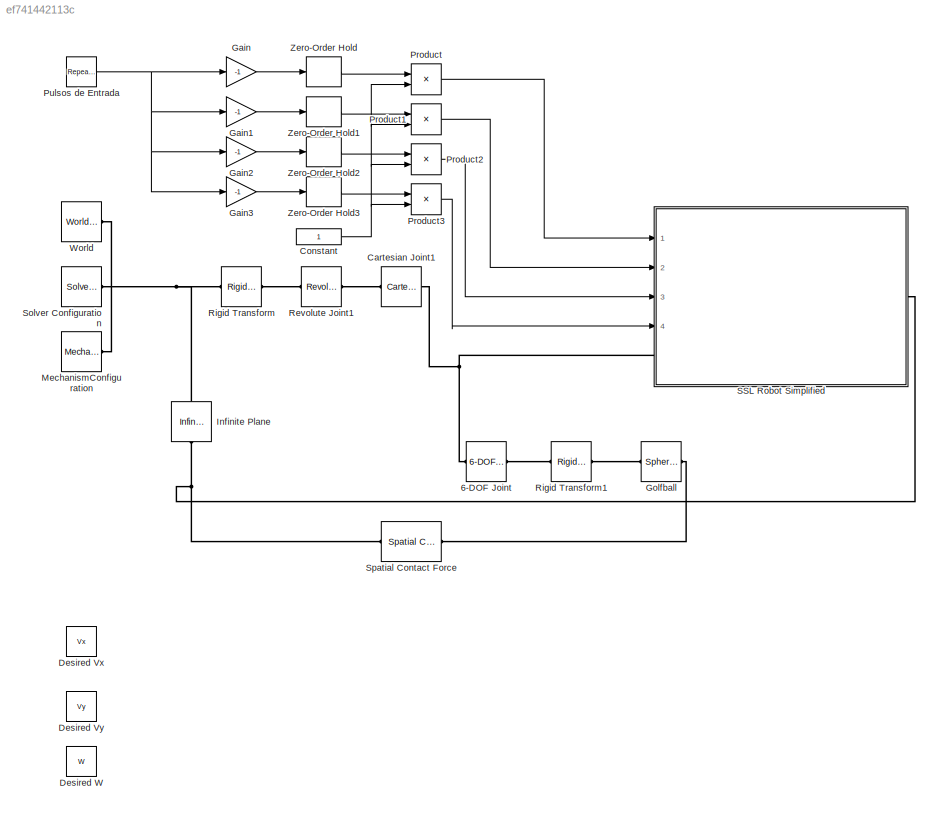
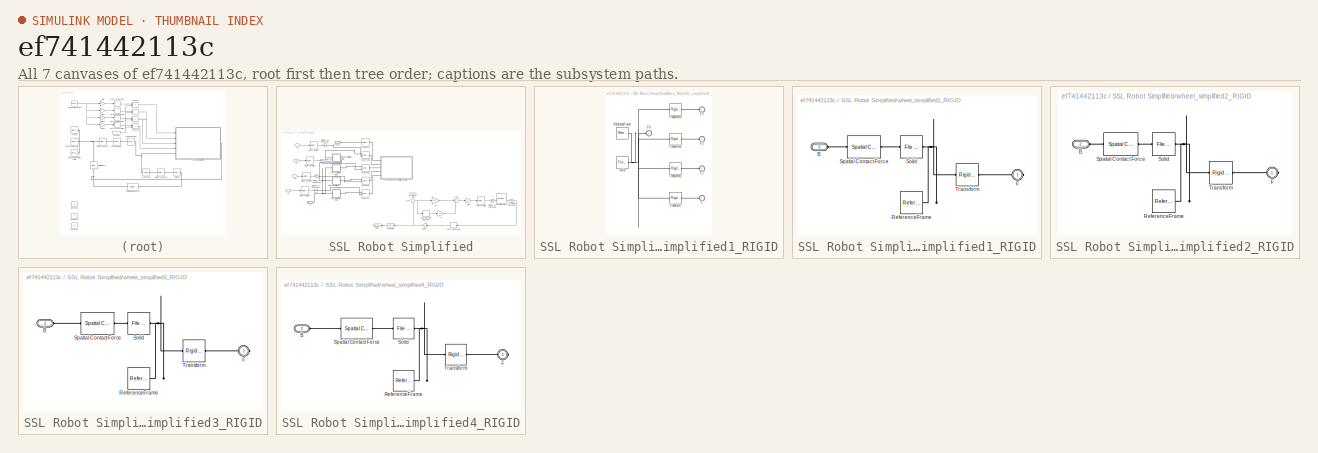
[diagram: thumbnail index - all 7 canvases of the model, root first then tree order]
MODEL slx_ef741442113c
KIND model
CONFIG AbsTol = auto
CONFIG EnableMultiTasking = off
CONFIG FixedStep = auto
CONFIG MaxStep = auto
CONFIG MinStep = auto
CONFIG RelTol = 1e-3
CONFIG SampleTimeConstraint = Unconstrained
CONFIG SolverName = VariableStepAuto
CONFIG StartTime = 0.0
CONFIG StopTime = 10.0
WORKSPACE source: external: MATLAB File  (data not in archive)
BLOCK [Reference] 6-DOF Joint  REF=sm_lib/Joints/6-DOF Joint
  Ports = [0, 0, 0, 0, 0, 1, 1]
  SourceBlock = sm_lib/Joints/6-DOF Joint
  SourceProductBaseCode = MS
  SourceType = 6-DOF Joint
BLOCK [Reference] Cartesian Joint1  REF=sm_lib/Joints/Cartesian
Joint
  Ports = [0, 0, 0, 0, 0, 1, 1]
  SourceBlock = sm_lib/Joints/Cartesian\nJoint
  SourceProductBaseCode = MS
  SourceType = Cartesian\nJoint
BLOCK [Constant] Constant
BLOCK [Constant] Desired Vx
  Commented = on
  Value = Vx
BLOCK [Constant] Desired Vy
  Commented = on
  Value = Vy
BLOCK [Constant] Desired W
  Commented = on
  Value = W
BLOCK [Gain] Gain
  Gain = -1
BLOCK [Gain] Gain1
  Gain = -1
BLOCK [Gain] Gain2
  Gain = -1
BLOCK [Gain] Gain3
  Gain = -1
BLOCK [Reference] Golfball  REF=sm_lib/Body Elements/Spherical Solid
  NameLocation = top
  Ports = [0, 0, 0, 0, 0, 1, 1]
  SourceBlock = sm_lib/Body Elements/Spherical Solid
  SourceProductBaseCode = MS
  SourceType = Spherical Solid
BLOCK [Reference] Infinite Plane  REF=sm_lib/Curves and Surfaces/Infinite Plane
  NameLocation = left
  Ports = [0, 0, 0, 0, 0, 1, 1]
  SourceBlock = sm_lib/Curves and Surfaces/Infinite Plane
  SourceProductBaseCode = MS
  SourceType = Infinite Plane
BLOCK [Reference] MechanismConfiguration  REF=sm_lib/Utilities/Mechanism
Configuration
  Ports = [0, 0, 0, 0, 0, 0, 1]
  SourceBlock = sm_lib/Utilities/Mechanism\nConfiguration
  SourceProductBaseCode = MS
  SourceType = Mechanism\nConfiguration
BLOCK [Product] Product
  Ports = [2, 1]
BLOCK [Product] Product1
  Ports = [2, 1]
BLOCK [Product] Product2
  Ports = [2, 1]
BLOCK [Product] Product3
  Ports = [2, 1]
BLOCK [Reference] Pulsos de Entrada  REF=simulink/Sources/Repeating
Sequence
  Ports = [0, 1]
  SourceBlock = simulink/Sources/Repeating\nSequence
  SourceProductBaseCode = SL
  SourceType = Repeating table
BLOCK [Reference] Revolute Joint1  REF=sm_lib/Joints/Revolute Joint
  Ports = [0, 0, 0, 0, 0, 1, 1]
  SourceBlock = sm_lib/Joints/Revolute Joint
  SourceProductBaseCode = MS
  SourceType = Revolute Joint
BLOCK [Reference] Rigid Transform  REF=sm_lib/Frames and
Transforms/Rigid
Transform
  Ports = [0, 0, 0, 0, 0, 1, 1]
  SourceBlock = sm_lib/Frames and\nTransforms/Rigid\nTransform
  SourceProductBaseCode = MS
  SourceType = Rigid\nTransform
BLOCK [Reference] Rigid Transform1  REF=sm_lib/Frames and
Transforms/Rigid
Transform
  Ports = [0, 0, 0, 0, 0, 1, 1]
  SourceBlock = sm_lib/Frames and\nTransforms/Rigid\nTransform
  SourceProductBaseCode = MS
  SourceType = Rigid\nTransform
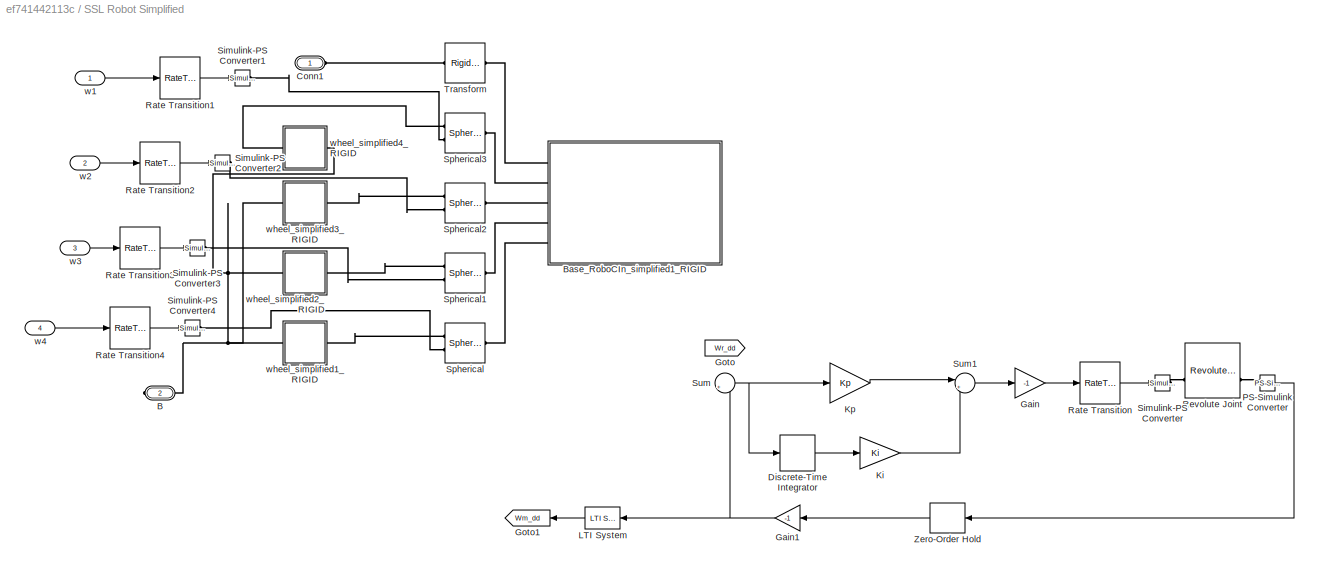
BLOCK [SubSystem] SSL Robot Simplified
  Ports = [4, 0, 0, 0, 0, 1, 1]
  RequestExecContextInheritance = off
BLOCK [PMIOPort] SSL Robot Simplified/B
  Port = 2
  Side = Right
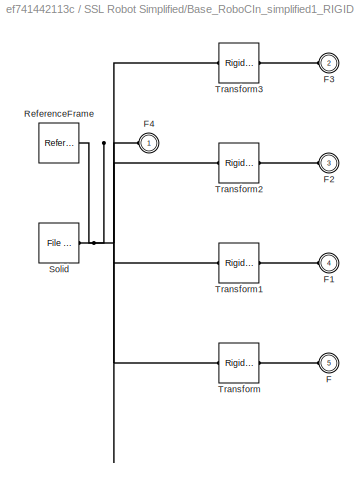
BLOCK [SubSystem] SSL Robot Simplified/Base_RoboCIn_simplified1_RIGID
  Ports = [0, 0, 0, 0, 0, 5]
  RequestExecContextInheritance = off
BLOCK [PMIOPort] SSL Robot Simplified/Base_RoboCIn_simplified1_RIGID/F
  Port = 5
  Side = Left
BLOCK [PMIOPort] SSL Robot Simplified/Base_RoboCIn_simplified1_RIGID/F1
  Port = 4
  Side = Left
BLOCK [PMIOPort] SSL Robot Simplified/Base_RoboCIn_simplified1_RIGID/F2
  Port = 3
  Side = Left
BLOCK [PMIOPort] SSL Robot Simplified/Base_RoboCIn_simplified1_RIGID/F3
  Port = 2
  Side = Left
BLOCK [PMIOPort] SSL Robot Simplified/Base_RoboCIn_simplified1_RIGID/F4
  Side = Left
BLOCK [Reference] SSL Robot Simplified/Base_RoboCIn_simplified1_RIGID/ReferenceFrame  REF=sm_lib/Frames and
Transforms/Reference
Frame
  Ports = [0, 0, 0, 0, 0, 0, 1]
  SourceBlock = sm_lib/Frames and\nTransforms/Reference\nFrame
  SourceProductBaseCode = MS
  SourceType = Reference\nFrame
BLOCK [Reference] SSL Robot Simplified/Base_RoboCIn_simplified1_RIGID/Solid  REF=sm_lib/Body Elements/File Solid
  Ports = [0, 0, 0, 0, 0, 0, 1]
  SourceBlock = sm_lib/Body Elements/File Solid
  SourceProductBaseCode = MS
  SourceType = File Solid
BLOCK [Reference] SSL Robot Simplified/Base_RoboCIn_simplified1_RIGID/Transform  REF=sm_lib/Frames and
Transforms/Rigid
Transform
  Ports = [0, 0, 0, 0, 0, 1, 1]
  SourceBlock = sm_lib/Frames and\nTransforms/Rigid\nTransform
  SourceProductBaseCode = MS
  SourceType = Rigid\nTransform
BLOCK [Reference] SSL Robot Simplified/Base_RoboCIn_simplified1_RIGID/Transform1  REF=sm_lib/Frames and
Transforms/Rigid
Transform
  Ports = [0, 0, 0, 0, 0, 1, 1]
  SourceBlock = sm_lib/Frames and\nTransforms/Rigid\nTransform
  SourceProductBaseCode = MS
  SourceType = Rigid\nTransform
BLOCK [Reference] SSL Robot Simplified/Base_RoboCIn_simplified1_RIGID/Transform2  REF=sm_lib/Frames and
Transforms/Rigid
Transform
  Ports = [0, 0, 0, 0, 0, 1, 1]
  SourceBlock = sm_lib/Frames and\nTransforms/Rigid\nTransform
  SourceProductBaseCode = MS
  SourceType = Rigid\nTransform
BLOCK [Reference] SSL Robot Simplified/Base_RoboCIn_simplified1_RIGID/Transform3  REF=sm_lib/Frames and
Transforms/Rigid
Transform
  Ports = [0, 0, 0, 0, 0, 1, 1]
  SourceBlock = sm_lib/Frames and\nTransforms/Rigid\nTransform
  SourceProductBaseCode = MS
  SourceType = Rigid\nTransform
BLOCK [PMIOPort] SSL Robot Simplified/Conn1
  Side = Left
BLOCK [DiscreteIntegrator] SSL Robot Simplified/Discrete-Time Integrator
  Commented = on
  ICPrevOutput = DiscIntNeverNeededParam
  ICPrevScaledInput = DiscIntNeverNeededParam
  InitialConditionSetting = Auto
  Ports = [1, 1]
  SampleTime = -1
BLOCK [Gain] SSL Robot Simplified/Gain
  Commented = on
  Gain = -1
BLOCK [Gain] SSL Robot Simplified/Gain1
  Commented = on
  Gain = -1
BLOCK [Goto] SSL Robot Simplified/Goto
  Commented = on
  GotoTag = Wr_dd
  TagVisibility = global
BLOCK [Goto] SSL Robot Simplified/Goto1
  Commented = on
  GotoTag = Wm_dd
  TagVisibility = global
BLOCK [Gain] SSL Robot Simplified/Ki
  Commented = on
  Gain = Ki
BLOCK [Gain] SSL Robot Simplified/Kp
  Commented = on
  Gain = Kp
BLOCK [Reference] SSL Robot Simplified/LTI System  REF=cstblocks/LTI System
  Commented = on
  Ports = [1, 1]
  SourceBlock = cstblocks/LTI System
  SourceProductBaseCode = CT
  SourceType = LTI Block
BLOCK [Reference] SSL Robot Simplified/PS-Simulink Converter  REF=nesl_utility/PS-Simulink
Converter
  Commented = on
  Ports = [0, 1, 0, 0, 0, 1]
  SourceBlock = nesl_utility/PS-Simulink\nConverter
  SourceProductBaseCode = PW,SS
  SourceType = PS-Simulink\nConverter
BLOCK [RateTransition] SSL Robot Simplified/Rate Transition
  Commented = on
BLOCK [RateTransition] SSL Robot Simplified/Rate Transition1
BLOCK [RateTransition] SSL Robot Simplified/Rate Transition2
BLOCK [RateTransition] SSL Robot Simplified/Rate Transition3
BLOCK [RateTransition] SSL Robot Simplified/Rate Transition4
BLOCK [Reference] SSL Robot Simplified/Revolute Joint  REF=sm_lib/Joints/Revolute Joint
  Commented = on
  Ports = [0, 0, 0, 0, 0, 2, 2]
  SourceBlock = sm_lib/Joints/Revolute Joint
  SourceProductBaseCode = MS
  SourceType = Revolute Joint
BLOCK [Reference] SSL Robot Simplified/Simulink-PS Converter  REF=nesl_utility/Simulink-PS
Converter
  Commented = on
  Ports = [1, 0, 0, 0, 0, 0, 1]
  SourceBlock = nesl_utility/Simulink-PS\nConverter
  SourceProductBaseCode = PW,SS
  SourceType = Simulink-PS\nConverter
BLOCK [Reference] SSL Robot Simplified/Simulink-PS Converter1  REF=nesl_utility/Simulink-PS
Converter
  Ports = [1, 0, 0, 0, 0, 0, 1]
  SourceBlock = nesl_utility/Simulink-PS\nConverter
  SourceProductBaseCode = PW,SS
  SourceType = Simulink-PS\nConverter
BLOCK [Reference] SSL Robot Simplified/Simulink-PS Converter2  REF=nesl_utility/Simulink-PS
Converter
  Ports = [1, 0, 0, 0, 0, 0, 1]
  SourceBlock = nesl_utility/Simulink-PS\nConverter
  SourceProductBaseCode = PW,SS
  SourceType = Simulink-PS\nConverter
BLOCK [Reference] SSL Robot Simplified/Simulink-PS Converter3  REF=nesl_utility/Simulink-PS
Converter
  Ports = [1, 0, 0, 0, 0, 0, 1]
  SourceBlock = nesl_utility/Simulink-PS\nConverter
  SourceProductBaseCode = PW,SS
  SourceType = Simulink-PS\nConverter
BLOCK [Reference] SSL Robot Simplified/Simulink-PS Converter4  REF=nesl_utility/Simulink-PS
Converter
  Ports = [1, 0, 0, 0, 0, 0, 1]
  SourceBlock = nesl_utility/Simulink-PS\nConverter
  SourceProductBaseCode = PW,SS
  SourceType = Simulink-PS\nConverter
BLOCK [Reference] SSL Robot Simplified/Spherical  REF=sm_lib/Joints/Spherical
Joint
  Ports = [0, 0, 0, 0, 0, 2, 1]
  SourceBlock = sm_lib/Joints/Spherical\nJoint
  SourceProductBaseCode = MS
  SourceType = Spherical\nJoint
BLOCK [Reference] SSL Robot Simplified/Spherical1  REF=sm_lib/Joints/Spherical
Joint
  Ports = [0, 0, 0, 0, 0, 2, 1]
  SourceBlock = sm_lib/Joints/Spherical\nJoint
  SourceProductBaseCode = MS
  SourceType = Spherical\nJoint
BLOCK [Reference] SSL Robot Simplified/Spherical2  REF=sm_lib/Joints/Spherical
Joint
  Ports = [0, 0, 0, 0, 0, 2, 1]
  SourceBlock = sm_lib/Joints/Spherical\nJoint
  SourceProductBaseCode = MS
  SourceType = Spherical\nJoint
BLOCK [Reference] SSL Robot Simplified/Spherical3  REF=sm_lib/Joints/Spherical
Joint
  Ports = [0, 0, 0, 0, 0, 2, 1]
  SourceBlock = sm_lib/Joints/Spherical\nJoint
  SourceProductBaseCode = MS
  SourceType = Spherical\nJoint
BLOCK [Sum] SSL Robot Simplified/Sum
  Commented = on
  Inputs = |+-
  Ports = [2, 1]
BLOCK [Sum] SSL Robot Simplified/Sum1
  Commented = on
  Inputs = |++
  Ports = [2, 1]
BLOCK [Reference] SSL Robot Simplified/Transform  REF=sm_lib/Frames and
Transforms/Rigid
Transform
  Ports = [0, 0, 0, 0, 0, 1, 1]
  SourceBlock = sm_lib/Frames and\nTransforms/Rigid\nTransform
  SourceProductBaseCode = MS
  SourceType = Rigid\nTransform
BLOCK [ZeroOrderHold] SSL Robot Simplified/Zero-Order Hold
  Commented = on
  SampleTime = T
BLOCK [Inport] SSL Robot Simplified/w1
BLOCK [Inport] SSL Robot Simplified/w2
  Port = 2
BLOCK [Inport] SSL Robot Simplified/w3
  Port = 3
BLOCK [Inport] SSL Robot Simplified/w4
  Port = 4
BLOCK [SubSystem] SSL Robot Simplified/wheel_simplified1_RIGID
  Ports = [0, 0, 0, 0, 0, 1, 1]
  RequestExecContextInheritance = off
BLOCK [PMIOPort] SSL Robot Simplified/wheel_simplified1_RIGID/B
  Port = 2
  Side = Left
BLOCK [PMIOPort] SSL Robot Simplified/wheel_simplified1_RIGID/F
  Side = Right
BLOCK [Reference] SSL Robot Simplified/wheel_simplified1_RIGID/ReferenceFrame  REF=sm_lib/Frames and
Transforms/Reference
Frame
  Ports = [0, 0, 0, 0, 0, 0, 1]
  SourceBlock = sm_lib/Frames and\nTransforms/Reference\nFrame
  SourceProductBaseCode = MS
  SourceType = Reference\nFrame
BLOCK [Reference] SSL Robot Simplified/wheel_simplified1_RIGID/Solid  REF=sm_lib/Body Elements/File Solid
  Ports = [0, 0, 0, 0, 0, 1, 1]
  SourceBlock = sm_lib/Body Elements/File Solid
  SourceProductBaseCode = MS
  SourceType = File Solid
BLOCK [Reference] SSL Robot Simplified/wheel_simplified1_RIGID/Spatial Contact Force  REF=sm_lib/Forces and
Torques/Spatial
Contact Force
  Ports = [0, 0, 0, 0, 0, 1, 1]
  SourceBlock = sm_lib/Forces and\nTorques/Spatial\nContact Force
  SourceProductBaseCode = MS
  SourceType = Spatial\nContact Force
BLOCK [Reference] SSL Robot Simplified/wheel_simplified1_RIGID/Transform  REF=sm_lib/Frames and
Transforms/Rigid
Transform
  Ports = [0, 0, 0, 0, 0, 1, 1]
  SourceBlock = sm_lib/Frames and\nTransforms/Rigid\nTransform
  SourceProductBaseCode = MS
  SourceType = Rigid\nTransform
BLOCK [SubSystem] SSL Robot Simplified/wheel_simplified2_RIGID
  Ports = [0, 0, 0, 0, 0, 1, 1]
  RequestExecContextInheritance = off
BLOCK [PMIOPort] SSL Robot Simplified/wheel_simplified2_RIGID/B
  Port = 2
  Side = Left
BLOCK [PMIOPort] SSL Robot Simplified/wheel_simplified2_RIGID/F
  Side = Right
BLOCK [Reference] SSL Robot Simplified/wheel_simplified2_RIGID/ReferenceFrame  REF=sm_lib/Frames and
Transforms/Reference
Frame
  Ports = [0, 0, 0, 0, 0, 0, 1]
  SourceBlock = sm_lib/Frames and\nTransforms/Reference\nFrame
  SourceProductBaseCode = MS
  SourceType = Reference\nFrame
BLOCK [Reference] SSL Robot Simplified/wheel_simplified2_RIGID/Solid  REF=sm_lib/Body Elements/File Solid
  Ports = [0, 0, 0, 0, 0, 1, 1]
  SourceBlock = sm_lib/Body Elements/File Solid
  SourceProductBaseCode = MS
  SourceType = File Solid
BLOCK [Reference] SSL Robot Simplified/wheel_simplified2_RIGID/Spatial Contact Force  REF=sm_lib/Forces and
Torques/Spatial
Contact Force
  Ports = [0, 0, 0, 0, 0, 1, 1]
  SourceBlock = sm_lib/Forces and\nTorques/Spatial\nContact Force
  SourceProductBaseCode = MS
  SourceType = Spatial\nContact Force
BLOCK [Reference] SSL Robot Simplified/wheel_simplified2_RIGID/Transform  REF=sm_lib/Frames and
Transforms/Rigid
Transform
  Ports = [0, 0, 0, 0, 0, 1, 1]
  SourceBlock = sm_lib/Frames and\nTransforms/Rigid\nTransform
  SourceProductBaseCode = MS
  SourceType = Rigid\nTransform
BLOCK [SubSystem] SSL Robot Simplified/wheel_simplified3_RIGID
  Ports = [0, 0, 0, 0, 0, 1, 1]
  RequestExecContextInheritance = off
BLOCK [PMIOPort] SSL Robot Simplified/wheel_simplified3_RIGID/B
  Port = 2
  Side = Left
BLOCK [PMIOPort] SSL Robot Simplified/wheel_simplified3_RIGID/F
  Side = Right
BLOCK [Reference] SSL Robot Simplified/wheel_simplified3_RIGID/ReferenceFrame  REF=sm_lib/Frames and
Transforms/Reference
Frame
  Ports = [0, 0, 0, 0, 0, 0, 1]
  SourceBlock = sm_lib/Frames and\nTransforms/Reference\nFrame
  SourceProductBaseCode = MS
  SourceType = Reference\nFrame
BLOCK [Reference] SSL Robot Simplified/wheel_simplified3_RIGID/Solid  REF=sm_lib/Body Elements/File Solid
  Ports = [0, 0, 0, 0, 0, 1, 1]
  SourceBlock = sm_lib/Body Elements/File Solid
  SourceProductBaseCode = MS
  SourceType = File Solid
BLOCK [Reference] SSL Robot Simplified/wheel_simplified3_RIGID/Spatial Contact Force  REF=sm_lib/Forces and
Torques/Spatial
Contact Force
  Ports = [0, 0, 0, 0, 0, 1, 1]
  SourceBlock = sm_lib/Forces and\nTorques/Spatial\nContact Force
  SourceProductBaseCode = MS
  SourceType = Spatial\nContact Force
BLOCK [Reference] SSL Robot Simplified/wheel_simplified3_RIGID/Transform  REF=sm_lib/Frames and
Transforms/Rigid
Transform
  Ports = [0, 0, 0, 0, 0, 1, 1]
  SourceBlock = sm_lib/Frames and\nTransforms/Rigid\nTransform
  SourceProductBaseCode = MS
  SourceType = Rigid\nTransform
BLOCK [SubSystem] SSL Robot Simplified/wheel_simplified4_RIGID
  NameLocation = top
  Ports = [0, 0, 0, 0, 0, 1, 1]
  RequestExecContextInheritance = off
BLOCK [PMIOPort] SSL Robot Simplified/wheel_simplified4_RIGID/B
  Port = 2
  Side = Left
BLOCK [PMIOPort] SSL Robot Simplified/wheel_simplified4_RIGID/F
  Side = Right
BLOCK [Reference] SSL Robot Simplified/wheel_simplified4_RIGID/ReferenceFrame  REF=sm_lib/Frames and
Transforms/Reference
Frame
  Ports = [0, 0, 0, 0, 0, 0, 1]
  SourceBlock = sm_lib/Frames and\nTransforms/Reference\nFrame
  SourceProductBaseCode = MS
  SourceType = Reference\nFrame
BLOCK [Reference] SSL Robot Simplified/wheel_simplified4_RIGID/Solid  REF=sm_lib/Body Elements/File Solid
  Ports = [0, 0, 0, 0, 0, 1, 1]
  SourceBlock = sm_lib/Body Elements/File Solid
  SourceProductBaseCode = MS
  SourceType = File Solid
BLOCK [Reference] SSL Robot Simplified/wheel_simplified4_RIGID/Spatial Contact Force  REF=sm_lib/Forces and
Torques/Spatial
Contact Force
  Ports = [0, 0, 0, 0, 0, 1, 1]
  SourceBlock = sm_lib/Forces and\nTorques/Spatial\nContact Force
  SourceProductBaseCode = MS
  SourceType = Spatial\nContact Force
BLOCK [Reference] SSL Robot Simplified/wheel_simplified4_RIGID/Transform  REF=sm_lib/Frames and
Transforms/Rigid
Transform
  Ports = [0, 0, 0, 0, 0, 1, 1]
  SourceBlock = sm_lib/Frames and\nTransforms/Rigid\nTransform
  SourceProductBaseCode = MS
  SourceType = Rigid\nTransform
BLOCK [Reference] Solver Configuration  REF=nesl_utility/Solver
Configuration
  Ports = [0, 0, 0, 0, 0, 0, 1]
  SourceBlock = nesl_utility/Solver\nConfiguration
  SourceProductBaseCode = PW,SS
  SourceType = Solver\nConfiguration
BLOCK [Reference] Spatial Contact Force  REF=sm_lib/Forces and
Torques/Spatial
Contact Force
  Ports = [0, 0, 0, 0, 0, 1, 1]
  SourceBlock = sm_lib/Forces and\nTorques/Spatial\nContact Force
  SourceProductBaseCode = MS
  SourceType = Spatial\nContact Force
BLOCK [Reference] World  REF=sm_lib/Frames and
Transforms/World Frame
  Ports = [0, 0, 0, 0, 0, 0, 1]
  SourceBlock = sm_lib/Frames and\nTransforms/World Frame
  SourceProductBaseCode = MS
  SourceType = World Frame
BLOCK [ZeroOrderHold] Zero-Order Hold
  SampleTime = T
BLOCK [ZeroOrderHold] Zero-Order Hold1
  SampleTime = T
BLOCK [ZeroOrderHold] Zero-Order Hold2
  SampleTime = T
BLOCK [ZeroOrderHold] Zero-Order Hold3
  SampleTime = T
NET Constant:1 -> Product1:2, Product2:2, Product3:2, Product:2
LINE Gain1:1 -> Zero-Order Hold1:1
LINE Gain2:1 -> Zero-Order Hold2:1
LINE Gain3:1 -> Zero-Order Hold3:1
LINE Gain:1 -> Zero-Order Hold:1
LINE Product1:1 -> SSL Robot Simplified:2
LINE Product2:1 -> SSL Robot Simplified:3
LINE Product3:1 -> SSL Robot Simplified:4
LINE Product:1 -> SSL Robot Simplified:1
NET Pulsos de Entrada:1 -> Gain1:1, Gain2:1, Gain3:1, Gain:1
LINE SSL Robot Simplified/Discrete-Time Integrator:1 -> SSL Robot Simplified/Ki:1
NET SSL Robot Simplified/Gain1:1 -> SSL Robot Simplified/LTI System:1, SSL Robot Simplified/Sum:2
LINE SSL Robot Simplified/Gain:1 -> SSL Robot Simplified/Rate Transition:1
LINE SSL Robot Simplified/Ki:1 -> SSL Robot Simplified/Sum1:2
LINE SSL Robot Simplified/Kp:1 -> SSL Robot Simplified/Sum1:1
LINE SSL Robot Simplified/LTI System:1 -> SSL Robot Simplified/Goto1:1
LINE SSL Robot Simplified/PS-Simulink Converter:1 -> SSL Robot Simplified/Zero-Order Hold:1
LINE SSL Robot Simplified/Rate Transition1:1 -> SSL Robot Simplified/Simulink-PS Converter1:1
LINE SSL Robot Simplified/Rate Transition2:1 -> SSL Robot Simplified/Simulink-PS Converter2:1
LINE SSL Robot Simplified/Rate Transition3:1 -> SSL Robot Simplified/Simulink-PS Converter3:1
LINE SSL Robot Simplified/Rate Transition4:1 -> SSL Robot Simplified/Simulink-PS Converter4:1
LINE SSL Robot Simplified/Rate Transition:1 -> SSL Robot Simplified/Simulink-PS Converter:1
LINE SSL Robot Simplified/Sum1:1 -> SSL Robot Simplified/Gain:1
NET SSL Robot Simplified/Sum:1 -> SSL Robot Simplified/Discrete-Time Integrator:1, SSL Robot Simplified/Kp:1
LINE SSL Robot Simplified/Zero-Order Hold:1 -> SSL Robot Simplified/Gain1:1
LINE SSL Robot Simplified/w1:1 -> SSL Robot Simplified/Rate Transition1:1
LINE SSL Robot Simplified/w2:1 -> SSL Robot Simplified/Rate Transition2:1
LINE SSL Robot Simplified/w3:1 -> SSL Robot Simplified/Rate Transition3:1
LINE SSL Robot Simplified/w4:1 -> SSL Robot Simplified/Rate Transition4:1
LINE Zero-Order Hold1:1 -> Product1:1
LINE Zero-Order Hold2:1 -> Product2:1
LINE Zero-Order Hold3:1 -> Product3:1
LINE Zero-Order Hold:1 -> Product:1
PNET net1: 6-DOF Joint:LConn1 -- Cartesian Joint1:RConn1 -- SSL Robot Simplified:LConn1
PLINE 6-DOF Joint:RConn1 -- Rigid Transform1:LConn1
PLINE Cartesian Joint1:LConn1 -- Revolute Joint1:RConn1
PLINE Golfball:LConn1 -- Spatial Contact Force:RConn1
PLINE Golfball:RConn1 -- Rigid Transform1:RConn1
PNET net2: Infinite Plane:LConn1 -- MechanismConfiguration:RConn1 -- Rigid Transform:LConn1 -- Solver Configuration:RConn1 -- World:RConn1
PNET net3: Infinite Plane:RConn1 -- SSL Robot Simplified:RConn1 -- Spatial Contact Force:LConn1
PLINE Revolute Joint1:LConn1 -- Rigid Transform:RConn1
PNET net4: SSL Robot Simplified/B:RConn1 -- SSL Robot Simplified/wheel_simplified1_RIGID:LConn1 -- SSL Robot Simplified/wheel_simplified2_RIGID:LConn1 -- SSL Robot Simplified/wheel_simplified3_RIGID:LConn1 -- SSL Robot Simplified/wheel_simplified4_RIGID:LConn1
PLINE SSL Robot Simplified/Base_RoboCIn_simplified1_RIGID/F1:RConn1 -- SSL Robot Simplified/Base_RoboCIn_simplified1_RIGID/Transform1:RConn1
PLINE SSL Robot Simplified/Base_RoboCIn_simplified1_RIGID/F2:RConn1 -- SSL Robot Simplified/Base_RoboCIn_simplified1_RIGID/Transform2:RConn1
PLINE SSL Robot Simplified/Base_RoboCIn_simplified1_RIGID/F3:RConn1 -- SSL Robot Simplified/Base_RoboCIn_simplified1_RIGID/Transform3:RConn1
PNET net5: SSL Robot Simplified/Base_RoboCIn_simplified1_RIGID/F4:RConn1 -- SSL Robot Simplified/Base_RoboCIn_simplified1_RIGID/ReferenceFrame:RConn1 -- SSL Robot Simplified/Base_RoboCIn_simplified1_RIGID/Solid:RConn1 -- SSL Robot Simplified/Base_RoboCIn_simplified1_RIGID/Transform1:LConn1 -- SSL Robot Simplified/Base_RoboCIn_simplified1_RIGID/Transform2:LConn1 -- SSL Robot Simplified/Base_RoboCIn_simplified1_RIGID/Transform3:LConn1 -- SSL Robot Simplified/Base_RoboCIn_simplified1_RIGID/Transform:LConn1
PLINE SSL Robot Simplified/Base_RoboCIn_simplified1_RIGID/F:RConn1 -- SSL Robot Simplified/Base_RoboCIn_simplified1_RIGID/Transform:RConn1
PLINE SSL Robot Simplified/Base_RoboCIn_simplified1_RIGID:LConn1 -- SSL Robot Simplified/Transform:RConn1
PLINE SSL Robot Simplified/Base_RoboCIn_simplified1_RIGID:LConn2 -- SSL Robot Simplified/Spherical3:RConn1
PLINE SSL Robot Simplified/Base_RoboCIn_simplified1_RIGID:LConn3 -- SSL Robot Simplified/Spherical2:RConn1
PLINE SSL Robot Simplified/Base_RoboCIn_simplified1_RIGID:LConn4 -- SSL Robot Simplified/Spherical1:RConn1
PLINE SSL Robot Simplified/Base_RoboCIn_simplified1_RIGID:LConn5 -- SSL Robot Simplified/Spherical:RConn1
PLINE SSL Robot Simplified/Conn1:RConn1 -- SSL Robot Simplified/Transform:LConn1
PLINE SSL Robot Simplified/PS-Simulink Converter:LConn1 -- SSL Robot Simplified/Revolute Joint:RConn2
PLINE SSL Robot Simplified/Revolute Joint:LConn2 -- SSL Robot Simplified/Simulink-PS Converter:RConn1
PLINE SSL Robot Simplified/Simulink-PS Converter1:RConn1 -- SSL Robot Simplified/Spherical3:LConn2
PLINE SSL Robot Simplified/Simulink-PS Converter2:RConn1 -- SSL Robot Simplified/Spherical2:LConn2
PLINE SSL Robot Simplified/Simulink-PS Converter3:RConn1 -- SSL Robot Simplified/Spherical1:LConn2
PLINE SSL Robot Simplified/Simulink-PS Converter4:RConn1 -- SSL Robot Simplified/Spherical:LConn2
PLINE SSL Robot Simplified/Spherical1:LConn1 -- SSL Robot Simplified/wheel_simplified2_RIGID:RConn1
PLINE SSL Robot Simplified/Spherical2:LConn1 -- SSL Robot Simplified/wheel_simplified3_RIGID:RConn1
PLINE SSL Robot Simplified/Spherical3:LConn1 -- SSL Robot Simplified/wheel_simplified4_RIGID:RConn1
PLINE SSL Robot Simplified/Spherical:LConn1 -- SSL Robot Simplified/wheel_simplified1_RIGID:RConn1
PLINE SSL Robot Simplified/wheel_simplified1_RIGID/B:RConn1 -- SSL Robot Simplified/wheel_simplified1_RIGID/Spatial Contact Force:LConn1
PLINE SSL Robot Simplified/wheel_simplified1_RIGID/F:RConn1 -- SSL Robot Simplified/wheel_simplified1_RIGID/Transform:RConn1
PNET net6: SSL Robot Simplified/wheel_simplified1_RIGID/ReferenceFrame:RConn1 -- SSL Robot Simplified/wheel_simplified1_RIGID/Solid:RConn1 -- SSL Robot Simplified/wheel_simplified1_RIGID/Transform:LConn1
PLINE SSL Robot Simplified/wheel_simplified1_RIGID/Solid:LConn1 -- SSL Robot Simplified/wheel_simplified1_RIGID/Spatial Contact Force:RConn1
PLINE SSL Robot Simplified/wheel_simplified2_RIGID/B:RConn1 -- SSL Robot Simplified/wheel_simplified2_RIGID/Spatial Contact Force:LConn1
PLINE SSL Robot Simplified/wheel_simplified2_RIGID/F:RConn1 -- SSL Robot Simplified/wheel_simplified2_RIGID/Transform:RConn1
PNET net7: SSL Robot Simplified/wheel_simplified2_RIGID/ReferenceFrame:RConn1 -- SSL Robot Simplified/wheel_simplified2_RIGID/Solid:RConn1 -- SSL Robot Simplified/wheel_simplified2_RIGID/Transform:LConn1
PLINE SSL Robot Simplified/wheel_simplified2_RIGID/Solid:LConn1 -- SSL Robot Simplified/wheel_simplified2_RIGID/Spatial Contact Force:RConn1
PLINE SSL Robot Simplified/wheel_simplified3_RIGID/B:RConn1 -- SSL Robot Simplified/wheel_simplified3_RIGID/Spatial Contact Force:LConn1
PLINE SSL Robot Simplified/wheel_simplified3_RIGID/F:RConn1 -- SSL Robot Simplified/wheel_simplified3_RIGID/Transform:RConn1
PNET net8: SSL Robot Simplified/wheel_simplified3_RIGID/ReferenceFrame:RConn1 -- SSL Robot Simplified/wheel_simplified3_RIGID/Solid:RConn1 -- SSL Robot Simplified/wheel_simplified3_RIGID/Transform:LConn1
PLINE SSL Robot Simplified/wheel_simplified3_RIGID/Solid:LConn1 -- SSL Robot Simplified/wheel_simplified3_RIGID/Spatial Contact Force:RConn1
PLINE SSL Robot Simplified/wheel_simplified4_RIGID/B:RConn1 -- SSL Robot Simplified/wheel_simplified4_RIGID/Spatial Contact Force:LConn1
PLINE SSL Robot Simplified/wheel_simplified4_RIGID/F:RConn1 -- SSL Robot Simplified/wheel_simplified4_RIGID/Transform:RConn1
PNET net9: SSL Robot Simplified/wheel_simplified4_RIGID/ReferenceFrame:RConn1 -- SSL Robot Simplified/wheel_simplified4_RIGID/Solid:RConn1 -- SSL Robot Simplified/wheel_simplified4_RIGID/Transform:LConn1
PLINE SSL Robot Simplified/wheel_simplified4_RIGID/Solid:LConn1 -- SSL Robot Simplified/wheel_simplified4_RIGID/Spatial Contact Force:RConn1
note: NET lines group one-source signal fan-out (src -> all destinations, sorted); 1:1 wires keep LINE; PNET lines group multi-terminal physical nets as a canonical sorted terminal list (undirected conserving connections); 2-terminal nets keep the pairwise PLINE form
